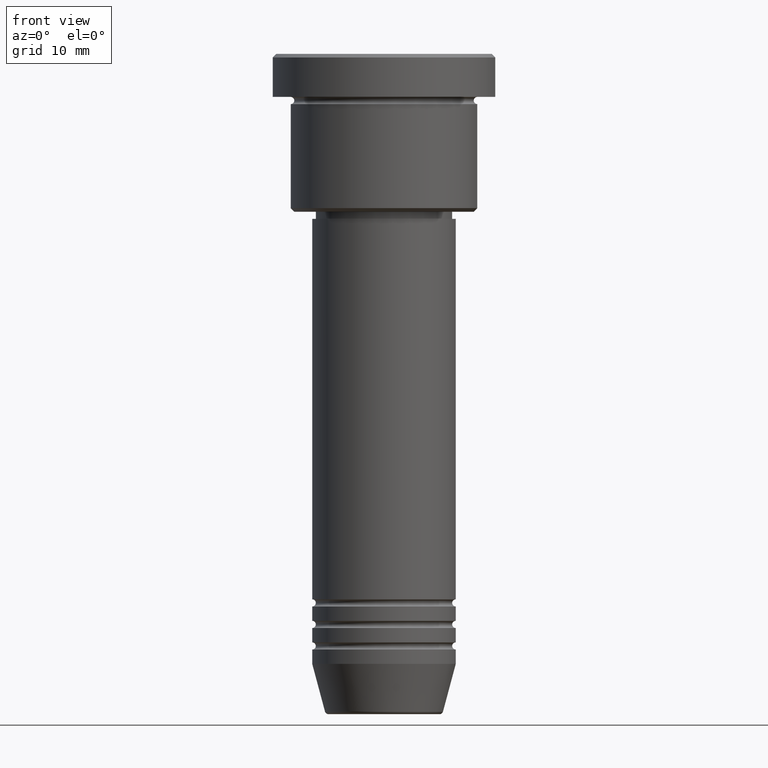
[diagram: clean part render]
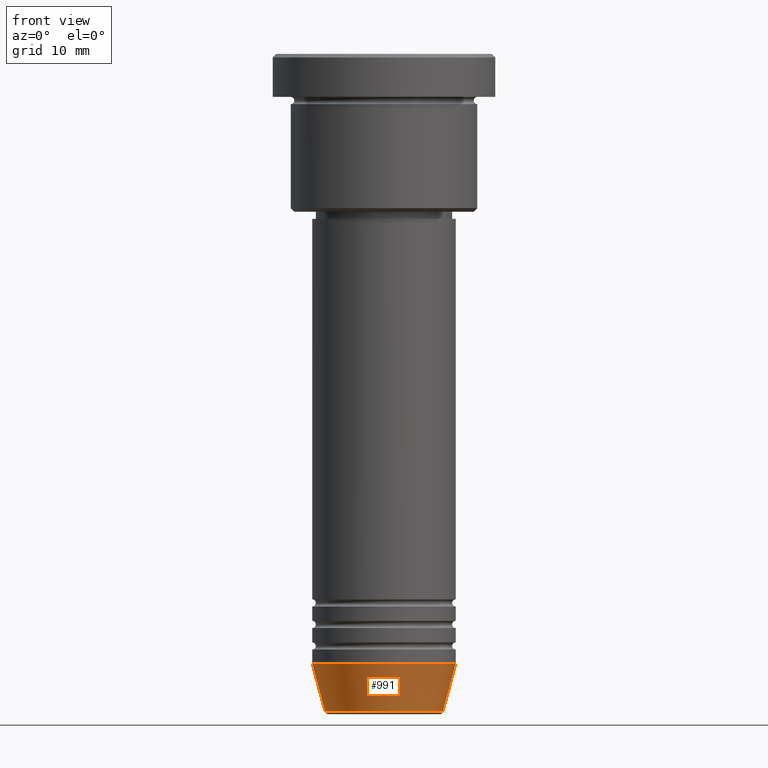
[diagram: same view with one face highlighted and labeled with its STEP entity id]
A machine part, front view. The second image highlights one B-rep face of the part: STEP entity #991.
In plain terms, the highlighted conical surface has half-angle 15 deg.
Its self-contained STEP definition (entity closure, byte-faithful):
#21 = CARTESIAN_POINT ( 'NONE',  ( 0.000000000000000000, 0.000000000000000000, -84.99999999999998579 ) ) ;
#43 = CARTESIAN_POINT ( 'NONE',  ( -8.223655072137187716, 1.115877042642911856E-15, -91.62940952255125637 ) ) ;
#49 = CIRCLE ( 'NONE', #393, 8.223655072137187716 ) ;
#72 = EDGE_CURVE ( 'NONE', #1045, #1073, #49, .T. ) ;
#149 = AXIS2_PLACEMENT_3D ( 'NONE', #21, #926, #669 ) ;
#233 = ORIENTED_EDGE ( 'NONE', *, *, #1030, .F. ) ;
#278 = CIRCLE ( 'NONE', #932, 10.00000000000000000 ) ;
#350 = VECTOR ( 'NONE', #498, 1000.000000000000000 ) ;
#364 = FACE_OUTER_BOUND ( 'NONE', #1062, .T. ) ;
#380 = CARTESIAN_POINT ( 'NONE',  ( 0.000000000000000000, 0.000000000000000000, -91.62940952255125637 ) ) ;
#393 = AXIS2_PLACEMENT_3D ( 'NONE', #380, #743, #988 ) ;
#444 = DIRECTION ( 'NONE',  ( 0.2588190451025213501, 0.000000000000000000, 0.9659258262890680902 ) ) ;
#461 = ORIENTED_EDGE ( 'NONE', *, *, #748, .F. ) ;
#498 = DIRECTION ( 'NONE',  ( -0.2588190451025213501, 3.169619151431772337E-17, 0.9659258262890680902 ) ) ;
#526 = VERTEX_POINT ( 'NONE', #1169 ) ;
#588 = CARTESIAN_POINT ( 'NONE',  ( 8.223655072137187716, 0.000000000000000000, -91.62940952255125637 ) ) ;
#615 = DIRECTION ( 'NONE',  ( 1.000000000000000000, 0.000000000000000000, 0.000000000000000000 ) ) ;
#669 = DIRECTION ( 'NONE',  ( 1.000000000000000000, 0.000000000000000000, 0.000000000000000000 ) ) ;
#672 = CONICAL_SURFACE ( 'NONE', #149, 10.00000000000000000, 0.2617993877991500740 ) ;
#701 = LINE ( 'NONE', #901, #738 ) ;
#710 = EDGE_CURVE ( 'NONE', #1073, #526, #701, .T. ) ;
#738 = VECTOR ( 'NONE', #444, 1000.000000000000000 ) ;
#743 = DIRECTION ( 'NONE',  ( -0.000000000000000000, -0.000000000000000000, 1.000000000000000000 ) ) ;
#748 = EDGE_CURVE ( 'NONE', #1020, #526, #278, .T. ) ;
#762 = CARTESIAN_POINT ( 'NONE',  ( -10.00000000000000000, 1.224646799147353256E-15, -84.99999999999998579 ) ) ;
#781 = LINE ( 'NONE', #1052, #350 ) ;
#782 = DIRECTION ( 'NONE',  ( -0.000000000000000000, -0.000000000000000000, 1.000000000000000000 ) ) ;
#901 = CARTESIAN_POINT ( 'NONE',  ( 10.00000000000000000, 0.000000000000000000, -84.99999999999998579 ) ) ;
#926 = DIRECTION ( 'NONE',  ( -0.000000000000000000, -0.000000000000000000, 1.000000000000000000 ) ) ;
#932 = AXIS2_PLACEMENT_3D ( 'NONE', #1146, #782, #615 ) ;
#959 = ORIENTED_EDGE ( 'NONE', *, *, #710, .T. ) ;
#988 = DIRECTION ( 'NONE',  ( 1.000000000000000000, 0.000000000000000000, 0.000000000000000000 ) ) ;
#991 = ADVANCED_FACE ( 'NONE', ( #364 ), #672, .T. ) ;
#1020 = VERTEX_POINT ( 'NONE', #762 ) ;
#1030 = EDGE_CURVE ( 'NONE', #1045, #1020, #781, .T. ) ;
#1045 = VERTEX_POINT ( 'NONE', #43 ) ;
#1052 = CARTESIAN_POINT ( 'NONE',  ( -10.00000000000000000, 1.224646799147353256E-15, -84.99999999999998579 ) ) ;
#1062 = EDGE_LOOP ( 'NONE', ( #233, #1180, #959, #461 ) ) ;
#1073 = VERTEX_POINT ( 'NONE', #588 ) ;
#1146 = CARTESIAN_POINT ( 'NONE',  ( 0.000000000000000000, 0.000000000000000000, -84.99999999999998579 ) ) ;
#1169 = CARTESIAN_POINT ( 'NONE',  ( 10.00000000000000000, 0.000000000000000000, -84.99999999999998579 ) ) ;
#1180 = ORIENTED_EDGE ( 'NONE', *, *, #72, .T. ) ;